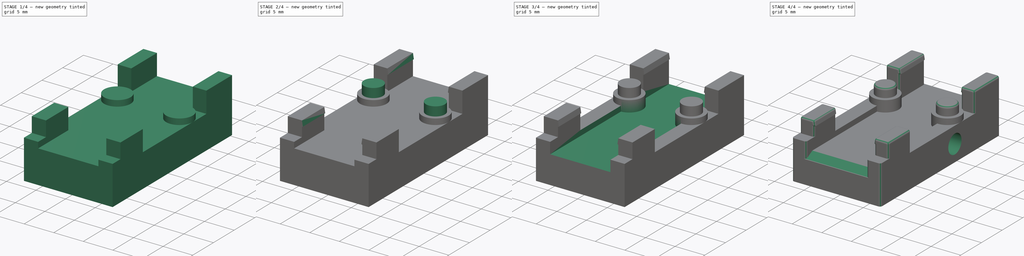
[diagram: build sequence overview — one tinted view per stage of 4, left to right]
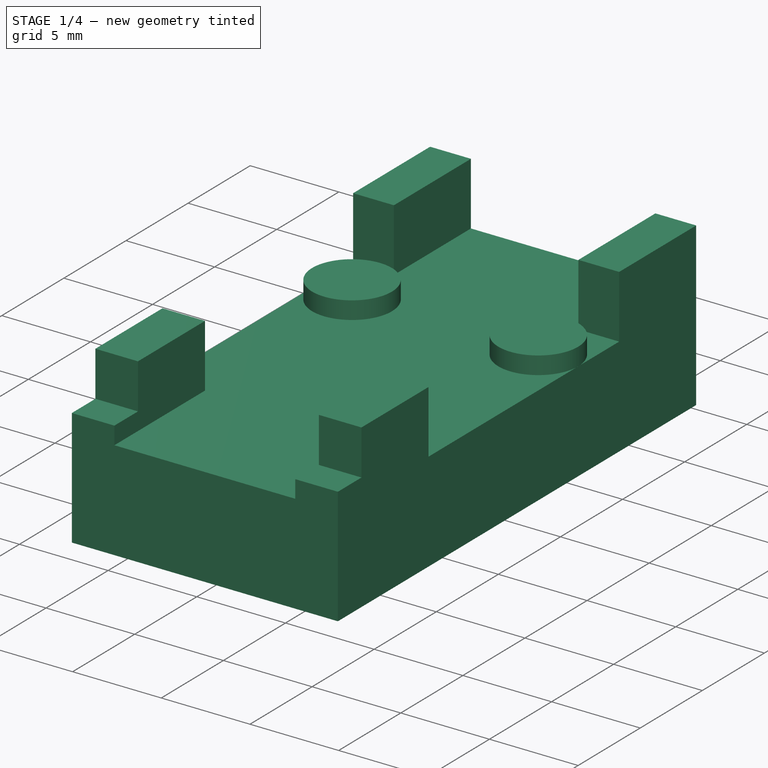
[diagram: stage 1 of 4 — iso view after this stage's code; geometry added in this stage tinted green]
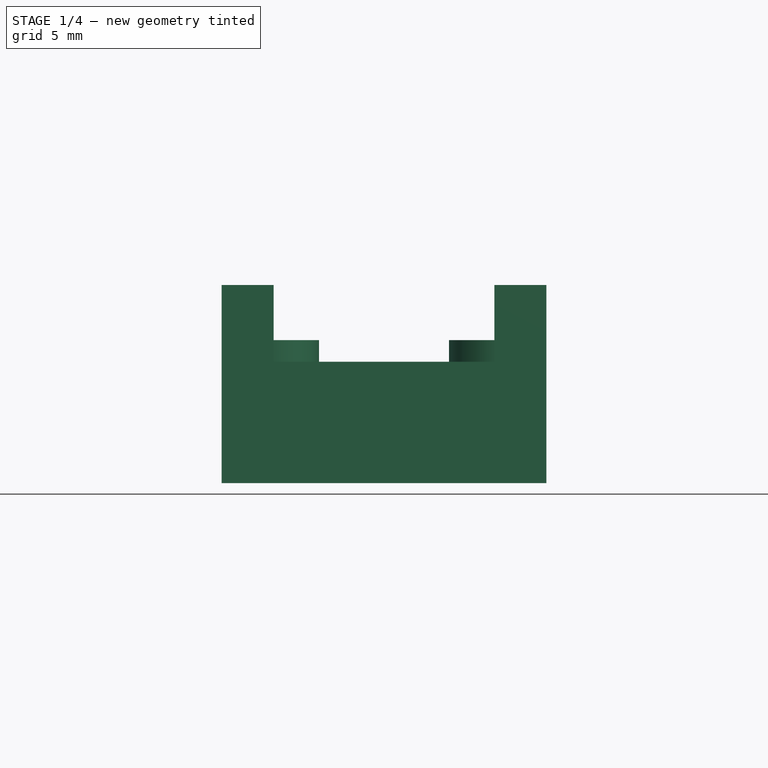
[diagram: stage 1 of 4 — front view after this stage's code; geometry added in this stage tinted green]
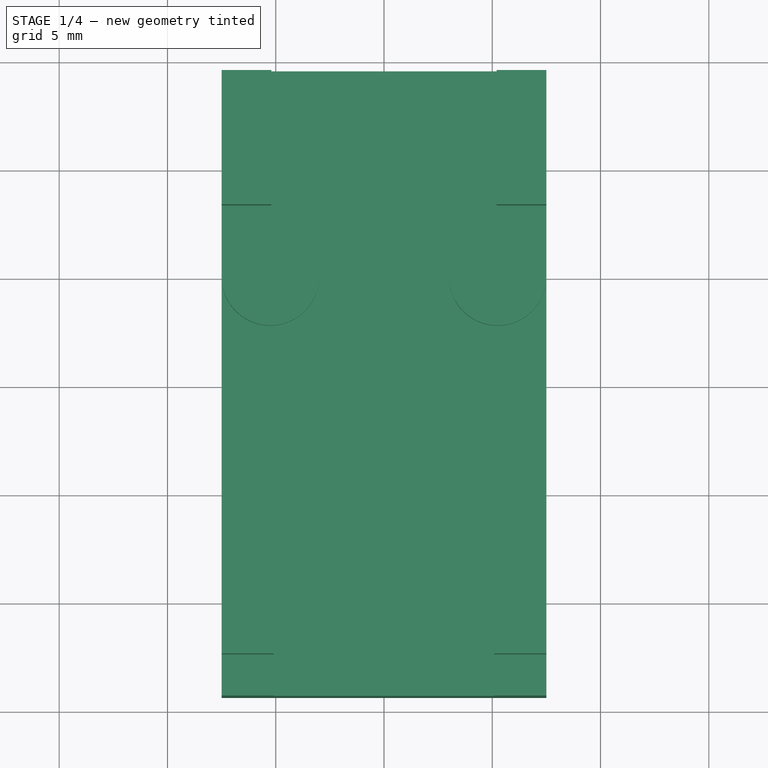
[diagram: stage 1 of 4 — top view after this stage's code; geometry added in this stage tinted green]
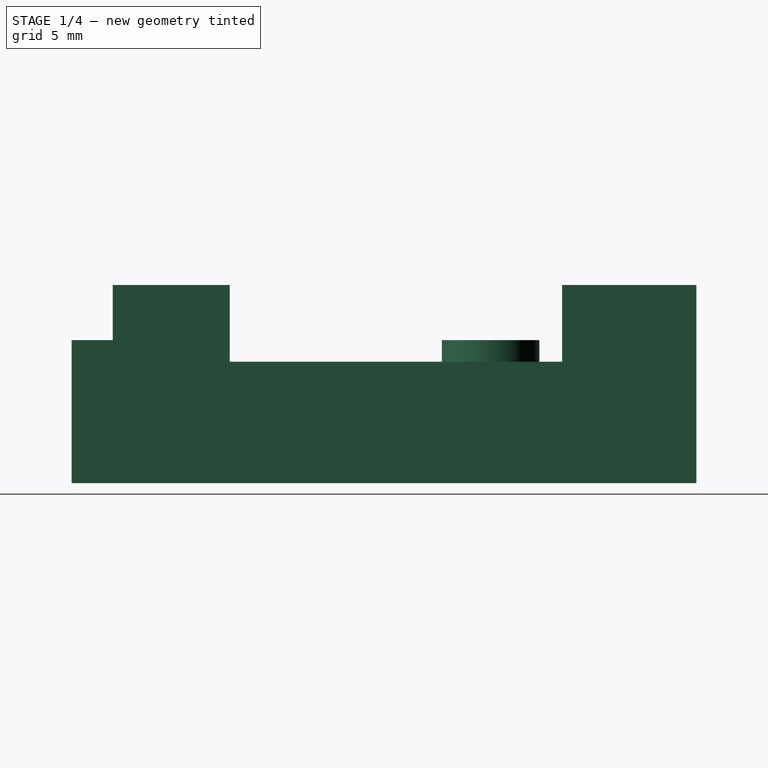
[diagram: stage 1 of 4 — right view after this stage's code; geometry added in this stage tinted green]
FCSTD DOCUMENT  (FreeCAD 1.1R44874 (Git))
Label: EddyDuoMount
License: All rights reserved
LicenseURL: https://en.wikipedia.org/wiki/All_rights_reserved
objects: Sketcher::SketchObject×10, PartDesign::Pad×6, PartDesign::Pocket×3, PartDesign::Plane×2, Spreadsheet::Sheet×1, PartDesign::Chamfer×1, PartDesign::Fillet×1, PartDesign::Body×1, App::Point×1
note: 56 computed .brp shape members not serialized (recipe doc carries the construction recipe); baked Part::Feature solids carry a one-line shape summary decoded from their .brp

FEATURE [Sketcher::SketchObject] Sketch  label="V1_Template_XY"
  ArcFitTolerance = 1e-06
  AttachmentSupport = -> [XY_Plane]
  ExternalTypes = [0]
  FullyConstrained = true
  MakeInternals = false
  MapMode = 5
  _ExternalGeoVersion = 0
  expr: Constraints[82] = <<Spreadsheet>>.MountingHoleOffset
  sketch-geometry (29):
    g0: LineSegment StartX=-7.5 StartY=9.5 StartZ=0 EndX=-7.5 EndY=-17.45 EndZ=0
    g1: LineSegment StartX=7.5 StartY=-17.45 StartZ=0 EndX=7.5 EndY=9.5 EndZ=0
    g2: LineSegment StartX=7.5 StartY=9.5 StartZ=0 EndX=-7.5 EndY=9.5 EndZ=0
    g3: Circle CenterX=5.25 CenterY=0 CenterZ=0 NormalX=0 NormalY=0 NormalZ=1 AngleXU=0 Radius=1.6
    g4: Circle CenterX=-5.25 CenterY=0 CenterZ=0 NormalX=0 NormalY=0 NormalZ=1 AngleXU=0 Radius=1.6
    g5: LineSegment [constr] StartX=1.3e-15 StartY=9.5 StartZ=0 EndX=1e-15 EndY=-17.45 EndZ=0
    g6: LineSegment [constr] StartX=5.25 StartY=0 StartZ=0 EndX=0 EndY=0 EndZ=0
    g7: LineSegment [constr] StartX=-5.25 StartY=0 StartZ=0 EndX=0 EndY=0 EndZ=0
    g8: LineSegment StartX=7.5 StartY=-1.4 StartZ=0 EndX=-7.5 EndY=-1.4 EndZ=0
    g9: LineSegment StartX=7.5 StartY=-17.45 StartZ=0 EndX=10.5 EndY=-17.45 EndZ=0
    g10: LineSegment StartX=10.5 StartY=-17.45 StartZ=0 EndX=10.5 EndY=-15.405 EndZ=0
    g11: LineSegment StartX=10.5 StartY=-15.405 StartZ=0 EndX=7.5 EndY=-15.35 EndZ=0
    g12: LineSegment StartX=-7.5 StartY=-12.05 StartZ=0 EndX=-5.1 EndY=-12.05 EndZ=0
    g13: LineSegment StartX=-5.1 StartY=-12.05 StartZ=0 EndX=-5.1 EndY=-17.45 EndZ=0
    g14: LineSegment StartX=7.5 StartY=-12.05 StartZ=0 EndX=5.1 EndY=-12.05 EndZ=0
    g15: LineSegment StartX=5.1 StartY=-12.05 StartZ=0 EndX=5.1 EndY=-17.45 EndZ=0
    g16: LineSegment StartX=-7.5 StartY=3.3 StartZ=0 EndX=-5.2 EndY=3.3 EndZ=0
    g17: LineSegment StartX=-5.2 StartY=3.3 StartZ=0 EndX=-5.2 EndY=9.5 EndZ=0
    g18: LineSegment StartX=7.5 StartY=3.3 StartZ=0 EndX=5.2 EndY=3.3 EndZ=0
    g19: LineSegment StartX=5.2 StartY=3.3 StartZ=0 EndX=5.2 EndY=9.5 EndZ=0
    g20: LineSegment StartX=-7.5 StartY=-17.45 StartZ=0 EndX=-5.1 EndY=-17.45 EndZ=0
    g21: LineSegment [constr] StartX=-5.1 StartY=-17.45 StartZ=0 EndX=5.1 EndY=-17.45 EndZ=0
    g22: LineSegment StartX=5.1 StartY=-17.45 StartZ=0 EndX=7.5 EndY=-17.45 EndZ=0
    g23: LineSegment StartX=-7.5 StartY=-17.45 StartZ=0 EndX=-7.5 EndY=-19.35 EndZ=0
    g24: LineSegment StartX=7.5 StartY=-17.45 StartZ=0 EndX=7.5 EndY=-19.35 EndZ=0
    g25: LineSegment StartX=7.5 StartY=-19.35 StartZ=0 EndX=-7.5 EndY=-19.35 EndZ=0
    g26: Circle CenterX=-5.25 CenterY=0 CenterZ=0 NormalX=0 NormalY=0 NormalZ=1 AngleXU=0 Radius=2.25
    g27: Circle CenterX=5.25 CenterY=0 CenterZ=0 NormalX=0 NormalY=0 NormalZ=1 AngleXU=0 Radius=2.25
    g28: LineSegment [constr] StartX=-7.5 StartY=-14.75 StartZ=0 EndX=7.5 EndY=-14.75 EndZ=0
  constraints (83):
    c: Coincident(g0,g20)
    c: Coincident(g22,g1)
    c: Coincident(g1,g2)
    c: Coincident(g2,g0)
    c: Vertical(g0)
    c: Vertical(g1)
    c: Horizontal(g2)
    c: DistanceX(g2,g2) = 15
    c: Symmetric(g2,g2,g5)
    c: Symmetric(g20,g22,g5)
    c: Equal(g3,g4)
    c: Coincident(g6,g3)
    c: PointOnObject(g6,g5)
    c: Horizontal(g6)
    c: Coincident(g7,g4)
    c: Horizontal(g7)
    c: Coincident(g7,g6)
    c: PointOnObject(g8,g1)
    c: PointOnObject(g8,g0)
    c: Horizontal(g8)
    c: Coincident(g9,g22)
    c: Horizontal(g9)
    c: Coincident(g10,g9)
    c: Vertical(g10)
    c: DistanceY(g10,g10) = 2.045
    c: Coincident(g11,g10)
    c: PointOnObject(g11,g1)
    c: DistanceY(g22,g11) = 2.1
    c: Diameter(g4) = 3.2
    c: Equal(g7,g6)
    c: DistanceX(g4,g3) = 10.5
    c: DistanceY(g4,g0) = 9.5
    c: PointOnObject(g12,g0)
    c: Horizontal(g12)
    c: Coincident(g13,g12)
    c: Vertical(g13)
    c: DistanceY(g0,g12) = 5.4  'BottomArmLength'
    c: Horizontal(g14)
    c: Coincident(g15,g14)
    c: Vertical(g15)
    c: Equal(g14,g12)
    c: Equal(g15,g13)
    c: PointOnObject(g14,g1)
    c: PointOnObject(g16,g0)
    c: Horizontal(g16)
    c: Coincident(g17,g16)
    c: PointOnObject(g17,g2)
    c: Vertical(g17)
    c: PointOnObject(g18,g1)
    c: Horizontal(g18)
    c: Coincident(g19,g18)
    c: PointOnObject(g19,g2)
    c: Vertical(g19)
    c: Equal(g18,g16)
    c: Equal(g17,g19)
    c: Coincident(g6,g-1)  '__ANCHOR__'
    c: DistanceX(g17,g19) = 10.4
    c: DistanceX(g12,g14) = 10.2
    c: Coincident(g20,g21)
    c: Horizontal(g20)
    c: PointOnObject(g15,g20)
    c: Coincident(g21,g22)
    c: Horizontal(g22)
    c: Coincident(g21,g15)
    c: Coincident(g20,g13)
    c: Coincident(g23,g0)
    c: Vertical(g23)
    c: Coincident(g24,g1)
    c: Vertical(g24)
    c: Coincident(g25,g24)
    c: Coincident(g25,g23)
    c: Horizontal(g25)
    c: DistanceX(g24,g9) = 3
    c: Coincident(g26,g4)
    c: Tangent(g26,g0)
    c: Coincident(g27,g3)
    c: Tangent(g27,g1)
    c: Symmetric(g12,g0,g28)
    c: Symmetric(g14,g1,g28)
    c: DistanceY(g28,g4) = 14.75
    c: DistanceY(g16,g0) = 6.2  'TopArmLength'
    c: DistanceY(g23,g28) = 4.6
    c: DistanceY(g8,g3) = 1.4
FEATURE [Sketcher::SketchObject] Sketch001  label="Base"
  ArcFitTolerance = 1e-06
  AttachmentSupport = -> [XY_Plane]
  ExternalGeometry = -> [Sketch]
  ExternalTypes = [0]
  FullyConstrained = true
  MakeInternals = false
  MapMode = 5
  _ExternalGeoVersion = 0
  sketch-geometry (4):
    g0: LineSegment StartX=-7.5 StartY=9.5 StartZ=0 EndX=-7.5 EndY=-19.35 EndZ=0
    g1: LineSegment StartX=-7.5 StartY=-19.35 StartZ=0 EndX=7.5 EndY=-19.35 EndZ=0
    g2: LineSegment StartX=7.5 StartY=-19.35 StartZ=0 EndX=7.5 EndY=9.5 EndZ=0
    g3: LineSegment StartX=7.5 StartY=9.5 StartZ=0 EndX=-7.5 EndY=9.5 EndZ=0
  constraints (8):
    c: Coincident(g0,g1)
    c: Coincident(g1,g2)
    c: Coincident(g2,g3)
    c: Coincident(g3,g0)
    c: Coincident(g0,g-3)
    c: Coincident(g1,g-4)
    c: Coincident(g2,g-3)
    c: Coincident(g0,g-4)
FEATURE [PartDesign::Pad] Pad  label="Base_"
  Direction = (0,0,1)
  Length = 5.6
  Length2 = 10
  Profile = -> Sketch001
  ReferenceAxis = -> Sketch001 [N_Axis]
  Refine = true
  SideType = 0
  Suppressed = false
  Type = 0
  Type2 = 0
  expr: Length = <<Spreadsheet>>.M3HoleDia + <<Spreadsheet>>.ScrewTopDisplacement + <<Spreadsheet>>.ScrewBottomDisplacement
FEATURE [Sketcher::SketchObject] Sketch002  label="Standoff"
  ArcFitTolerance = 1e-06
  AttachmentOffset = pos=(0,0,5.6) rot=(0,0,1;0rad)
  AttachmentSupport = -> [XY_Plane]
  ExternalGeometry = -> [Sketch]
  ExternalTypes = [0]
  FullyConstrained = true
  MakeInternals = false
  MapMode = 5
  Placement = pos=(0,0,5.6) rot=(0,0,1;0rad)
  _ExternalGeoVersion = 0
  expr: .AttachmentOffset.Base.z = <<Base_>>.Length
  sketch-geometry (18):
    g0: Circle CenterX=-5.25 CenterY=0 CenterZ=0 NormalX=0 NormalY=0 NormalZ=1 AngleXU=0 Radius=2.25
    g1: Circle CenterX=5.25 CenterY=0 CenterZ=0 NormalX=0 NormalY=0 NormalZ=1 AngleXU=0 Radius=2.25
    g2: LineSegment StartX=-7.5 StartY=9.5 StartZ=0 EndX=-7.5 EndY=3.3 EndZ=0
    g3: LineSegment StartX=-7.5 StartY=3.3 StartZ=0 EndX=-5.2 EndY=3.3 EndZ=0
    g4: LineSegment StartX=-5.2 StartY=3.3 StartZ=0 EndX=-5.2 EndY=9.5 EndZ=0
    g5: LineSegment StartX=-5.2 StartY=9.5 StartZ=0 EndX=-7.5 EndY=9.5 EndZ=0
    g6: LineSegment StartX=5.2 StartY=9.5 StartZ=0 EndX=5.2 EndY=3.3 EndZ=0
    g7: LineSegment StartX=5.2 StartY=3.3 StartZ=0 EndX=7.5 EndY=3.3 EndZ=0
    g8: LineSegment StartX=7.5 StartY=3.3 StartZ=0 EndX=7.5 EndY=9.5 EndZ=0
    g9: LineSegment StartX=7.5 StartY=9.5 StartZ=0 EndX=5.2 EndY=9.5 EndZ=0
    g10: LineSegment StartX=-7.5 StartY=-12.05 StartZ=0 EndX=-7.5 EndY=-19.35 EndZ=0
    g11: LineSegment StartX=-7.5 StartY=-19.35 StartZ=0 EndX=-5.1 EndY=-19.35 EndZ=0
    g12: LineSegment StartX=-5.1 StartY=-19.35 StartZ=0 EndX=-5.1 EndY=-12.05 EndZ=0
    g13: LineSegment StartX=-5.1 StartY=-12.05 StartZ=0 EndX=-7.5 EndY=-12.05 EndZ=0
    g14: LineSegment StartX=5.1 StartY=-12.05 StartZ=0 EndX=5.1 EndY=-19.35 EndZ=0
    g15: LineSegment StartX=5.1 StartY=-19.35 StartZ=0 EndX=7.5 EndY=-19.35 EndZ=0
    g16: LineSegment StartX=7.5 StartY=-19.35 StartZ=0 EndX=7.5 EndY=-12.05 EndZ=0
    g17: LineSegment StartX=7.5 StartY=-12.05 StartZ=0 EndX=5.1 EndY=-12.05 EndZ=0
  constraints (40):
    c: Coincident(g0,g-3)
    c: Tangent(g0,g-5)
    c: Coincident(g1,g-4)
    c: Tangent(g1,g-6)
    c: Coincident(g2,g3)
    c: Coincident(g3,g4)
    c: Coincident(g4,g5)
    c: Coincident(g5,g2)
    c: Vertical(g2)
    c: Horizontal(g3)
    c: Coincident(g2,g-5)
    c: Coincident(g3,g-10)
    c: Coincident(g6,g7)
    c: Coincident(g7,g8)
    c: Coincident(g8,g9)
    c: Coincident(g9,g6)
    c: Vertical(g8)
    c: Horizontal(g7)
    c: Coincident(g6,g-11)
    c: Coincident(g8,g-6)
    c: Coincident(g6,g-11)
    c: Coincident(g4,g-10)
    c: Coincident(g10,g11)
    c: Coincident(g11,g12)
    c: Coincident(g12,g13)
    c: Coincident(g13,g10)
    c: Vertical(g12)
    c: Horizontal(g11)
    c: Coincident(g10,g-9)
    c: Coincident(g14,g15)
    c: Coincident(g15,g16)
    c: Coincident(g16,g17)
    c: Coincident(g17,g14)
    c: Vertical(g14)
    c: Horizontal(g15)
    c: Coincident(g14,g-8)
    c: Coincident(g15,g-7)
    c: Coincident(g16,g-8)
    c: Coincident(g12,g-9)
    c: Coincident(g10,g-7)
FEATURE [PartDesign::Pad] Pad001  label="Standoff_"
  BaseFeature = -> Pad
  Direction = (0,0,1)
  Length = 1
  Length2 = 10
  Profile = -> Sketch002
  ReferenceAxis = -> Sketch002 [N_Axis]
  Refine = true
  SideType = 0
  Suppressed = false
  Type = 0
  Type2 = 0
  expr: Length = <<Spreadsheet>>.PCBStandoff
FEATURE [Sketcher::SketchObject] Sketch003  label="PCBSpikes"
  ArcFitTolerance = 1e-06
  AttachmentOffset = pos=(0,0,6.6) rot=(0,0,1;0rad)
  AttachmentSupport = -> [XY_Plane]
  ExternalGeometry = -> [Sketch]
  ExternalTypes = [0]
  FullyConstrained = true
  MakeInternals = false
  MapMode = 5
  Placement = pos=(0,0,6.6) rot=(0,0,1;0rad)
  _ExternalGeoVersion = 0
  expr: .AttachmentOffset.Base.z = <<Base_>>.Length + <<Standoff_>>.Length
  sketch-geometry (2):
    g0: Circle CenterX=-5.25 CenterY=0 CenterZ=0 NormalX=0 NormalY=0 NormalZ=1 AngleXU=0 Radius=1.6
    g1: Circle CenterX=5.25 CenterY=0 CenterZ=0 NormalX=0 NormalY=0 NormalZ=1 AngleXU=0 Radius=1.6
  constraints (4):
    c: Coincident(g0,g-4)
    c: Equal(g0,g-4)
    c: Coincident(g1,g-3)
    c: Equal(g1,g-3)
FEATURE [Sketcher::SketchObject] Sketch004
  ArcFitTolerance = 1e-06
  AttachmentOffset = pos=(0,0,5.6) rot=(0,0,1;0rad)
  AttachmentSupport = -> [XY_Plane]
  ExternalGeometry = -> [Sketch]
  ExternalTypes = [0]
  FullyConstrained = true
  MakeInternals = false
  MapMode = 5
  Placement = pos=(0,0,5.6) rot=(0,0,1;0rad)
  _ExternalGeoVersion = 0
  expr: .AttachmentOffset.Base.z = <<Base_>>.Length
  sketch-geometry (8):
    g0: ArcOfCircle CenterX=-5.25 CenterY=0 CenterZ=0 NormalX=0 NormalY=0 NormalZ=1 AngleXU=0 Radius=2.25 StartAngle=4.77911 EndAngle=7.83176
    g1: ArcOfCircle CenterX=5.25 CenterY=0 CenterZ=0 NormalX=0 NormalY=0 NormalZ=1 AngleXU=0 Radius=2.25 StartAngle=1.59302 EndAngle=4.64567
    g2: LineSegment StartX=5.2 StartY=9.5 StartZ=0 EndX=5.2 EndY=2.24944 EndZ=0
    g3: LineSegment StartX=-5.2 StartY=9.5 StartZ=0 EndX=-5.2 EndY=2.24944 EndZ=0
    g4: LineSegment StartX=-5.2 StartY=9.5 StartZ=0 EndX=5.2 EndY=9.5 EndZ=0
    g5: LineSegment StartX=-5.1 StartY=-19.35 StartZ=0 EndX=5.1 EndY=-19.35 EndZ=0
    g6: LineSegment StartX=-5.1 StartY=-19.35 StartZ=0 EndX=-5.1 EndY=-2.24499 EndZ=0
    g7: LineSegment StartX=5.1 StartY=-19.35 StartZ=0 EndX=5.1 EndY=-2.24499 EndZ=0
  constraints (22):
    c: Coincident(g1,g-4)
    c: Coincident(g0,g-3)
    c: Coincident(g2,g-6)
    c: PointOnObject(g2,g-4)
    c: PointOnObject(g-6,g2)
    c: Coincident(g1,g2)
    c: Coincident(g3,g-5)
    c: PointOnObject(g3,g-3)
    c: PointOnObject(g-5,g3)
    c: Coincident(g0,g3)
    c: Coincident(g4,g3)
    c: Coincident(g4,g2)
    c: Horizontal(g5)
    c: PointOnObject(g5,g-9)
    c: Coincident(g6,g0)
    c: Coincident(g7,g1)
    c: Coincident(g5,g7)
    c: PointOnObject(g-12,g7)
    c: PointOnObject(g-12,g7)
    c: PointOnObject(g-11,g6)
    c: PointOnObject(g-11,g6)
    c: Coincident(g5,g6)
FEATURE [Sketcher::SketchObject] Sketch009  label="MountingHoles"
  ArcFitTolerance = 1e-06
  AttachmentSupport = -> [YZ_Plane]
  ExternalGeometry = -> [Sketch]
  ExternalTypes = [0]
  FullyConstrained = true
  MakeInternals = false
  MapMode = 5
  Placement = pos=(0,0,0) rot=(0.57735,0.57735,0.57735;2.0944rad)
  _ExternalGeoVersion = 0
  expr: Constraints[2] = <<Spreadsheet>>.M3HoleDia / 2 + <<Spreadsheet>>.ScrewBottomDisplacement
  expr: Constraints[6] = <<Spreadsheet>>.M3HoleDia
  sketch-geometry (4):
    g0: LineSegment [constr] StartX=-1.4 StartY=0 StartZ=0 EndX=-1.4 EndY=2.8 EndZ=0
    g1: LineSegment [constr] StartX=-17.4 StartY=2.8 StartZ=0 EndX=-1.4 EndY=2.8 EndZ=0
    g2: Circle CenterX=-1.4 CenterY=2.8 CenterZ=0 NormalX=0 NormalY=0 NormalZ=1 AngleXU=0 Radius=1.6
    g3: Circle [constr] CenterX=-17.4 CenterY=2.8 CenterZ=0 NormalX=0 NormalY=0 NormalZ=1 AngleXU=0 Radius=1.3
  constraints (10):
    c: Coincident(g0,g-3)
    c: Vertical(g0)
    c: DistanceY(g0,g0) = 2.8
    c: Horizontal(g1)
    c: DistanceX(g1,g0) = 16
    c: Coincident(g2,g0)
    c: Diameter(g2) = 3.2
    c: Coincident(g1,g0)
    c: Coincident(g3,g1)
    c: Diameter(g3) = 2.6
FEATURE [Spreadsheet::Sheet] Spreadsheet
  cells = B2='Variant; C2='MountingHoleOffset; B3==hiddenref(Body.Config.String); C3(MountingHoleOffset)==.C6; B4='Low; C4==0.2 mm; B5='Medium; C5==0.8 mm; B6='High; C6==1.4 mm; B8='MountingHoleAdjust; C8(MountingHoleAdjust)==1.2 mm; B9='M3HoleDia; C9(M3HoleDia)==3.2 mm; B10='ScrewTopDisplacement; C10(ScrewTopDisplacement)==1.2 mm; B11='ScrewBottomDisplacement; C11(ScrewBottomDisplacement)==1.2 mm; B12='PCBThickness; C12(PCBThickness)==1.55 mm; B13='PCBStandoff; C13(PCBStandoff)==1 mm; B14='LockOverhang; C14(LockOverhang)==0.15 mm
  expr: .cells.Bind.C3.C3 = tuple(.cells; <<C>> + str(hiddenref(Body.Config) + 4); <<C>> + str(hiddenref(Body.Config) + 4))
FEATURE [Sketcher::SketchObject] Sketch010  label="Arms"
  ArcFitTolerance = 1e-06
  AttachmentOffset = pos=(0,0,6.6) rot=(0,0,1;0rad)
  AttachmentSupport = -> [XY_Plane]
  ExternalGeometry = -> [Sketch]
  ExternalTypes = [0]
  FullyConstrained = true
  MakeInternals = false
  MapMode = 5
  Placement = pos=(0,0,6.6) rot=(0,0,1;0rad)
  _ExternalGeoVersion = 0
  expr: .AttachmentOffset.Base.z = <<Base_>>.Length + <<Standoff_>>.Length
  sketch-geometry (16):
    g0: LineSegment StartX=-7.5 StartY=9.5 StartZ=0 EndX=-7.5 EndY=3.3 EndZ=0
    g1: LineSegment StartX=-7.5 StartY=3.3 StartZ=0 EndX=-5.2 EndY=3.3 EndZ=0
    g2: LineSegment StartX=-5.2 StartY=3.3 StartZ=0 EndX=-5.2 EndY=9.5 EndZ=0
    g3: LineSegment StartX=-5.2 StartY=9.5 StartZ=0 EndX=-7.5 EndY=9.5 EndZ=0
    g4: LineSegment StartX=5.2 StartY=9.5 StartZ=0 EndX=5.2 EndY=3.3 EndZ=0
    g5: LineSegment StartX=5.2 StartY=3.3 StartZ=0 EndX=7.5 EndY=3.3 EndZ=0
    g6: LineSegment StartX=7.5 StartY=3.3 StartZ=0 EndX=7.5 EndY=9.5 EndZ=0
    g7: LineSegment StartX=7.5 StartY=9.5 StartZ=0 EndX=5.2 EndY=9.5 EndZ=0
    g8: LineSegment StartX=5.1 StartY=-12.05 StartZ=0 EndX=5.1 EndY=-17.45 EndZ=0
    g9: LineSegment StartX=5.1 StartY=-17.45 StartZ=0 EndX=7.5 EndY=-17.45 EndZ=0
    g10: LineSegment StartX=7.5 StartY=-17.45 StartZ=0 EndX=7.5 EndY=-12.05 EndZ=0
    g11: LineSegment StartX=7.5 StartY=-12.05 StartZ=0 EndX=5.1 EndY=-12.05 EndZ=0
    g12: LineSegment StartX=-7.5 StartY=-12.05 StartZ=0 EndX=-7.5 EndY=-17.45 EndZ=0
    g13: LineSegment StartX=-7.5 StartY=-17.45 StartZ=0 EndX=-5.1 EndY=-17.45 EndZ=0
    g14: LineSegment StartX=-5.1 StartY=-17.45 StartZ=0 EndX=-5.1 EndY=-12.05 EndZ=0
    g15: LineSegment StartX=-5.1 StartY=-12.05 StartZ=0 EndX=-7.5 EndY=-12.05 EndZ=0
  constraints (40):
    c: Coincident(g0,g1)
    c: Coincident(g1,g2)
    c: Coincident(g2,g3)
    c: Coincident(g3,g0)
    c: Vertical(g0)
    c: Vertical(g2)
    c: Horizontal(g1)
    c: Horizontal(g3)
    c: Coincident(g0,g-7)
    c: Coincident(g1,g-4)
    c: Coincident(g4,g5)
    c: Coincident(g5,g6)
    c: Coincident(g6,g7)
    c: Coincident(g7,g4)
    c: Vertical(g4)
    c: Vertical(g6)
    c: Horizontal(g5)
    c: Horizontal(g7)
    c: Coincident(g4,g-5)
    c: Coincident(g5,g-6)
    c: Coincident(g8,g9)
    c: Coincident(g9,g10)
    c: Coincident(g10,g11)
    c: Coincident(g11,g8)
    c: Vertical(g8)
    c: Vertical(g10)
    c: Horizontal(g9)
    c: Horizontal(g11)
    c: Coincident(g8,g-10)
    c: Coincident(g9,g-11)
    c: Coincident(g12,g13)
    c: Coincident(g13,g14)
    c: Coincident(g14,g15)
    c: Coincident(g15,g12)
    c: Vertical(g12)
    c: Vertical(g14)
    c: Horizontal(g13)
    c: Horizontal(g15)
    c: Coincident(g12,g-8)
    c: Coincident(g13,g-9)
FEATURE [PartDesign::Pad] Pad004  label="Arms_"
  BaseFeature = -> Pad001
  Direction = (0,0,1)
  Length = 2.55
  Length2 = 10
  Profile = -> Sketch010
  ReferenceAxis = -> Sketch010 [N_Axis]
  Refine = true
  SideType = 0
  Suppressed = false
  Type = 0
  Type2 = 0
  expr: Length = <<Spreadsheet>>.PCBThickness + 1 mm
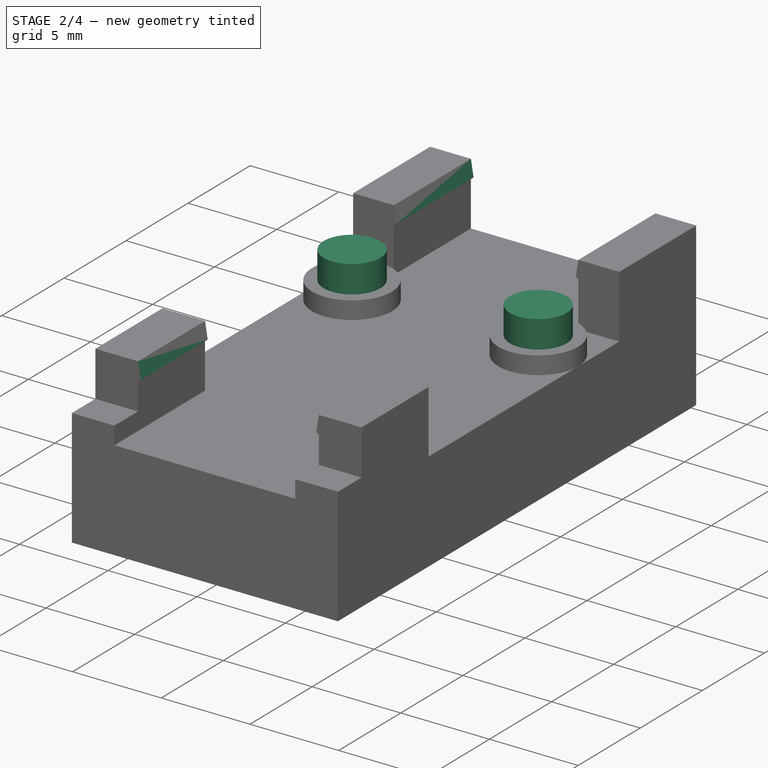
[diagram: stage 2 of 4 — iso view after this stage's code; geometry added in this stage tinted green]
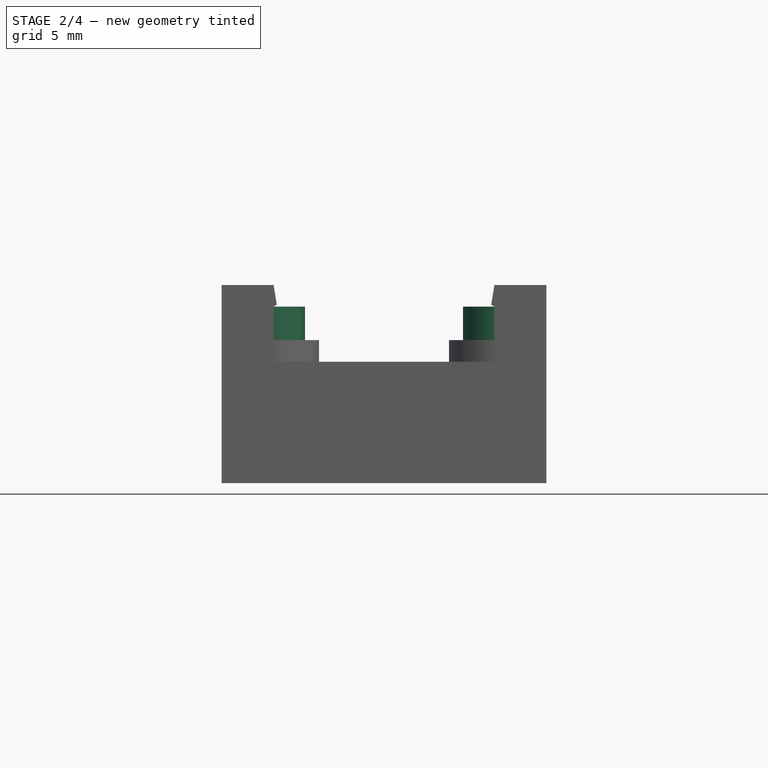
[diagram: stage 2 of 4 — front view after this stage's code; geometry added in this stage tinted green]
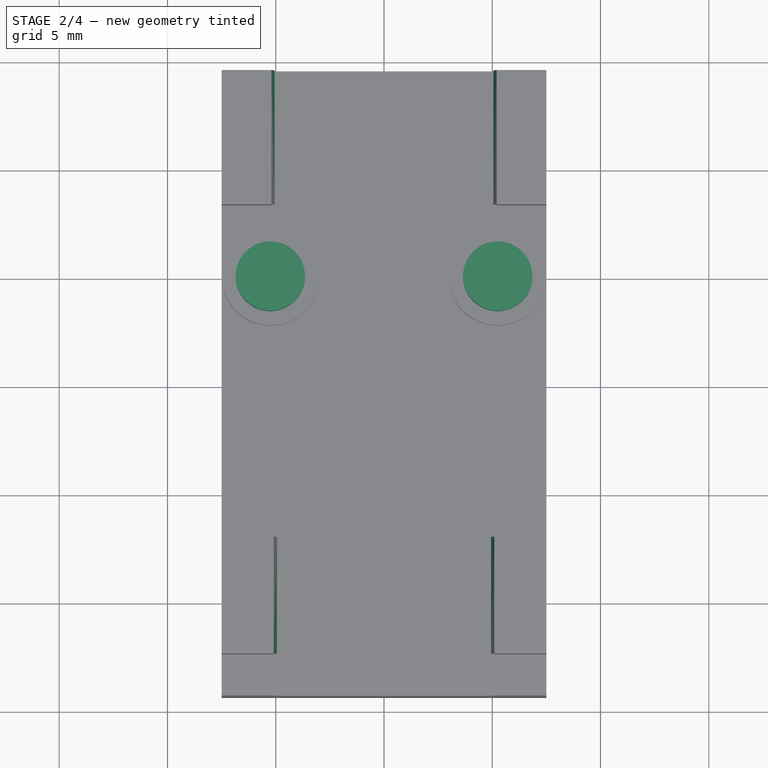
[diagram: stage 2 of 4 — top view after this stage's code; geometry added in this stage tinted green]
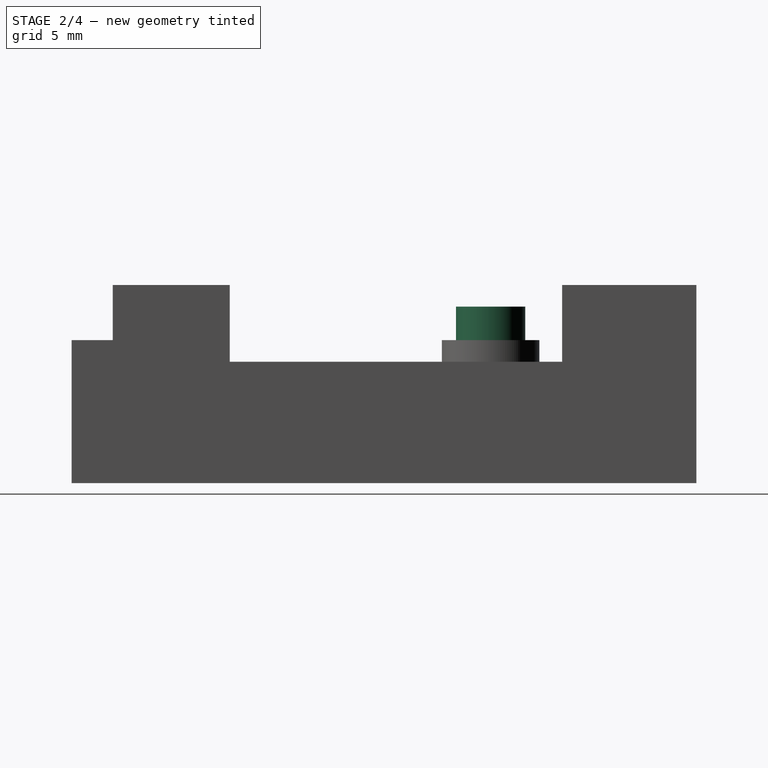
[diagram: stage 2 of 4 — right view after this stage's code; geometry added in this stage tinted green]
FEATURE [PartDesign::Pad] Pad002  label="PCBSpikes_"
  BaseFeature = -> Pad004
  Direction = (0,0,1)
  Length = 1.55
  Length2 = 10
  Profile = -> Sketch003
  ReferenceAxis = -> Sketch003 [N_Axis]
  Refine = true
  SideType = 0
  Suppressed = false
  Type = 0
  Type2 = 0
  expr: Length = <<Spreadsheet>>.PCBThickness
FEATURE [PartDesign::Plane] DatumPlane
  AttachmentSupport = -> [Sketch]
  Length = 60
  MapMode = 7
  Placement = pos=(-5.1,-12.05,0) rot=(0,0.707107,0.707107;3.14159rad)
  ResizeMode = 0
  Width = 60
FEATURE [Sketcher::SketchObject] Sketch011  label="BottomLocks"
  ArcFitTolerance = 1e-06
  AttachmentSupport = -> [DatumPlane]
  ExternalGeometry = -> [Sketch]
  ExternalTypes = [0]
  FullyConstrained = true
  MakeInternals = false
  MapMode = 5
  Placement = pos=(-5.1,-12.05,0) rot=(0,0.707107,0.707107;3.14159rad)
  _ExternalGeoVersion = 0
  expr: Constraints[12] = <<Base>>.Placement.Base.z + <<Base_>>.Length + <<Standoff_>>.Length + <<Arms_>>.Length
  expr: Constraints[23] = <<Spreadsheet>>.LockOverhang
  expr: Constraints[5] = <<Base>>.Placement.Base.z + <<Base_>>.Length + <<Standoff_>>.Length + <<Spreadsheet>>.PCBThickness
  sketch-geometry (9):
    g0: LineSegment [constr] StartX=0 StartY=0 StartZ=0 EndX=0 EndY=8.15 EndZ=0
    g1: LineSegment [constr] StartX=-10.2 StartY=0 StartZ=0 EndX=-10.2 EndY=8.15 EndZ=0
    g2: LineSegment StartX=0 StartY=8.15 StartZ=0 EndX=-0.15 EndY=8.2366 EndZ=0
    g3: LineSegment StartX=-0.15 StartY=8.2366 StartZ=0 EndX=0 EndY=9.15 EndZ=0
    g4: LineSegment [constr] StartX=0 StartY=8.15 StartZ=0 EndX=-0.164222 EndY=8.15 EndZ=0
    g5: LineSegment StartX=0 StartY=8.15 StartZ=0 EndX=0 EndY=9.15 EndZ=0
    g6: LineSegment StartX=-10.2 StartY=8.15 StartZ=0 EndX=-10.2 EndY=9.15 EndZ=0
    g7: LineSegment StartX=-10.2 StartY=9.15 StartZ=0 EndX=-10.05 EndY=8.2366 EndZ=0
    g8: LineSegment StartX=-10.05 StartY=8.2366 StartZ=0 EndX=-10.2 EndY=8.15 EndZ=0
  constraints (25):
    c: Coincident(g0,g-4)
    c: Vertical(g0)
    c: Coincident(g1,g-3)
    c: Vertical(g1)
    c: Equal(g0,g1)
    c: DistanceY(g0,g0) = 8.15
    c: Coincident(g2,g0)
    c: Coincident(g3,g2)
    c: Coincident(g4,g0)
    c: Horizontal(g4)
    c: PointOnObject(g4,g3)
    c: Coincident(g5,g0)
    c: DistanceY(g0,g3) = 9.15
    c: Vertical(g5)
    c: Coincident(g5,g3)
    c: Coincident(g6,g1)
    c: Vertical(g6)
    c: Equal(g6,g5)
    c: Coincident(g7,g6)
    c: Coincident(g8,g7)
    c: Coincident(g8,g1)
    c: Equal(g8,g2)
    c: Equal(g7,g3)
    c: DistanceX(g2,g3) = 0.15
    c: Angle(g2,g4) = 0.523599
FEATURE [PartDesign::Plane] DatumPlane001
  AttachmentSupport = -> [Sketch]
  Length = 60
  MapMode = 7
  Placement = pos=(5.2,9.5,0) rot=(1,0,0;1.5708rad)
  ResizeMode = 0
  Width = 60
FEATURE [Sketcher::SketchObject] Sketch012  label="TopLocks"
  ArcFitTolerance = 1e-06
  AttachmentSupport = -> [DatumPlane001]
  ExternalGeometry = -> [Sketch]
  ExternalTypes = [0]
  FullyConstrained = true
  MakeInternals = false
  MapMode = 5
  Placement = pos=(5.2,9.5,0) rot=(1,0,0;1.5708rad)
  _ExternalGeoVersion = 0
  expr: Constraints[16] = <<Spreadsheet>>.LockOverhang
  expr: Constraints[2] = <<Base>>.Placement.Base.z + <<Base_>>.Length + <<Standoff_>>.Length + <<Spreadsheet>>.PCBThickness
  expr: Constraints[8] = <<Base>>.Placement.Base.z + <<Base_>>.Length + <<Standoff_>>.Length + <<Arms_>>.Length
  sketch-geometry (9):
    g0: LineSegment [constr] StartX=0 StartY=-1.4e-15 StartZ=0 EndX=0 EndY=8.15 EndZ=0
    g1: LineSegment [constr] StartX=-10.4 StartY=-1.4e-15 StartZ=0 EndX=-10.4 EndY=8.15 EndZ=0
    g2: LineSegment StartX=0 StartY=8.15 StartZ=0 EndX=0 EndY=9.15 EndZ=0
    g3: LineSegment StartX=0 StartY=8.15 StartZ=0 EndX=-0.15 EndY=8.2366 EndZ=0
    g4: LineSegment StartX=-0.15 StartY=8.2366 StartZ=0 EndX=0 EndY=9.15 EndZ=0
    g5: LineSegment [constr] StartX=0 StartY=8.15 StartZ=0 EndX=-0.164222 EndY=8.15 EndZ=0
    g6: LineSegment StartX=-10.4 StartY=8.15 StartZ=0 EndX=-10.4 EndY=9.15 EndZ=0
    g7: LineSegment StartX=-10.4 StartY=9.15 StartZ=0 EndX=-10.25 EndY=8.2366 EndZ=0
    g8: LineSegment StartX=-10.25 StartY=8.2366 StartZ=0 EndX=-10.4 EndY=8.15 EndZ=0
  constraints (25):
    c: Vertical(g0)
    c: Coincident(g-4,g0)
    c: DistanceY(g0,g0) = 8.15
    c: Coincident(g1,g-3)
    c: Vertical(g1)
    c: Equal(g0,g1)
    c: Coincident(g2,g0)
    c: Vertical(g2)
    c: DistanceY(g0,g2) = 9.15
    c: Coincident(g3,g0)
    c: Coincident(g4,g3)
    c: Coincident(g4,g2)
    c: Coincident(g5,g0)
    c: Horizontal(g5)
    c: PointOnObject(g5,g4)
    c: Angle(g3,g5) = 0.523599
    c: DistanceX(g3,g2) = 0.15
    c: Coincident(g6,g1)
    c: Vertical(g6)
    c: Coincident(g7,g6)
    c: Coincident(g8,g7)
    c: Coincident(g8,g1)
    c: Equal(g2,g6)
    c: Equal(g7,g4)
    c: Equal(g3,g8)
FEATURE [PartDesign::Pad] Pad006  label="TopLocks_"
  BaseFeature = -> Pad002
  Direction = (0,-1,2e-16)
  Length = 6.2
  Length2 = 10
  Profile = -> Sketch012
  ReferenceAxis = -> Sketch012 [N_Axis]
  Refine = true
  SideType = 0
  Suppressed = false
  Type = 0
  Type2 = 0
  expr: Length = <<V1_Template_XY>>.Constraints.TopArmLength
FEATURE [PartDesign::Pad] Pad005  label="BottomLocks_"
  BaseFeature = -> Pad006
  Direction = (0,1,-2e-16)
  Length = 5.4
  Length2 = 10
  Profile = -> Sketch011
  ReferenceAxis = -> Sketch011 [N_Axis]
  Refine = true
  Reversed = true
  SideType = 0
  Suppressed = false
  Type = 0
  Type2 = 0
  expr: Length = <<V1_Template_XY>>.Constraints.BottomArmLength
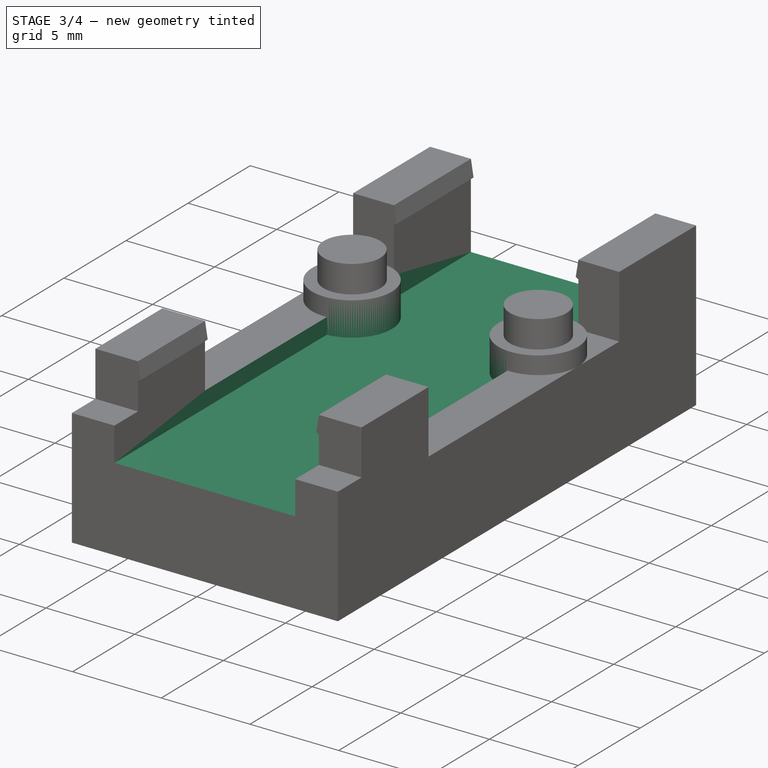
[diagram: stage 3 of 4 — iso view after this stage's code; geometry added in this stage tinted green]
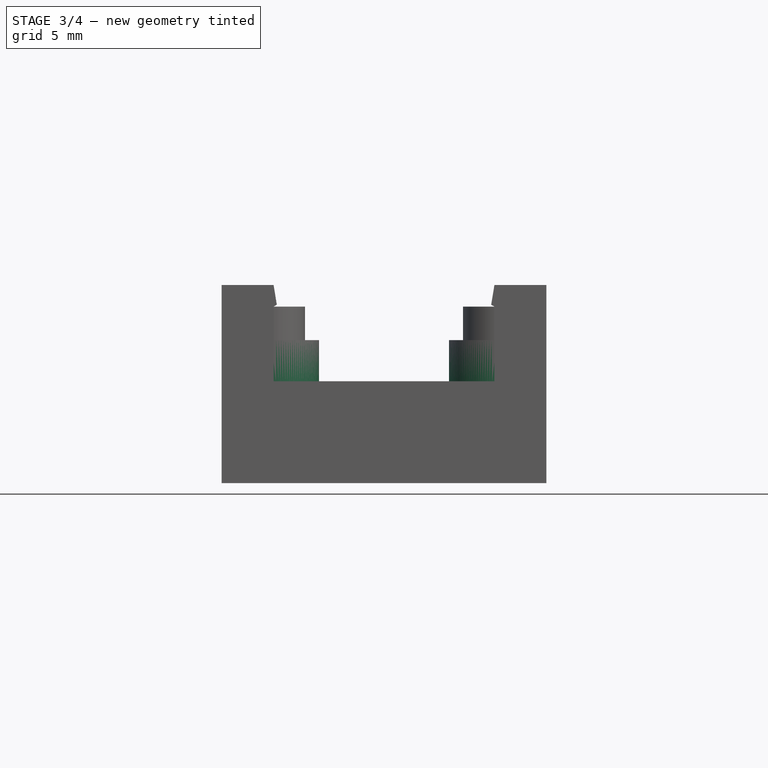
[diagram: stage 3 of 4 — front view after this stage's code; geometry added in this stage tinted green]
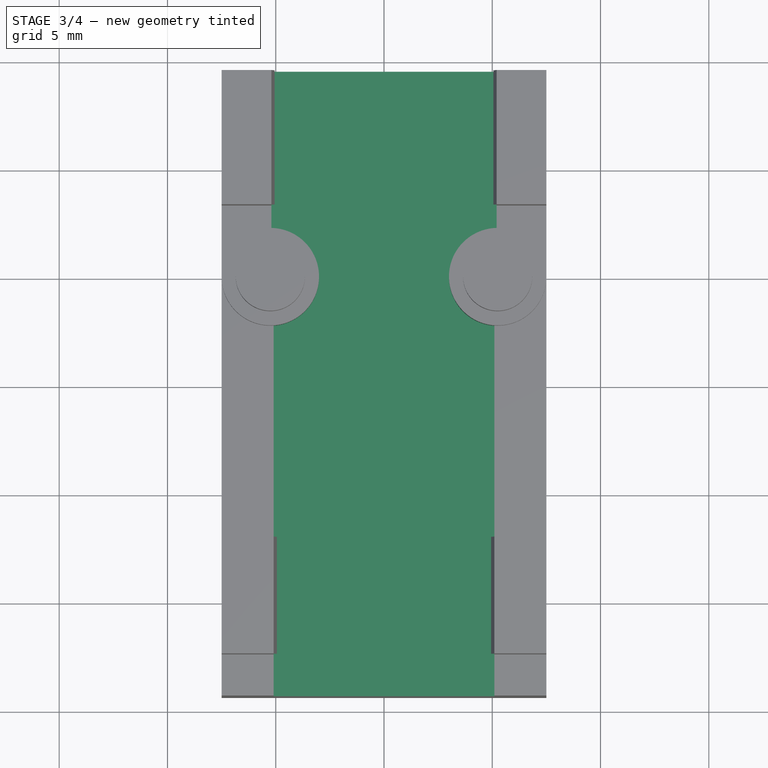
[diagram: stage 3 of 4 — top view after this stage's code; geometry added in this stage tinted green]
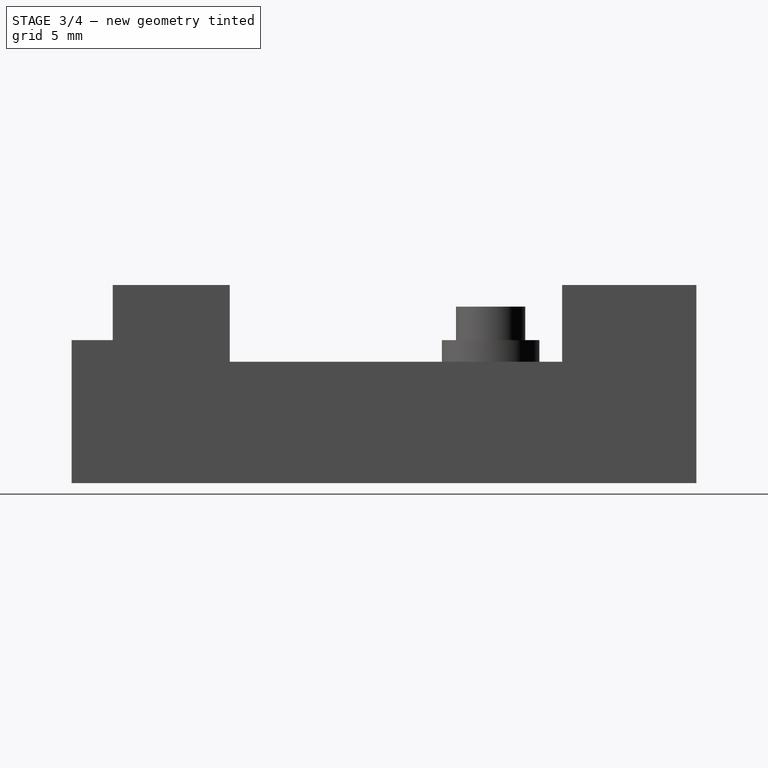
[diagram: stage 3 of 4 — right view after this stage's code; geometry added in this stage tinted green]
FEATURE [PartDesign::Pocket] Pocket
  BaseFeature = -> Pad005
  Direction = (0,0,-1)
  Length = 0.9
  Length2 = 5
  Profile = -> Sketch004
  ReferenceAxis = -> Sketch004 [N_Axis]
  Refine = true
  SideType = 0
  Suppressed = false
  Type = 0
  Type2 = 0
FEATURE [Sketcher::SketchObject] Sketch013
  ArcFitTolerance = 1e-06
  AttachmentOffset = pos=(0,0,5.6) rot=(0,0,1;0rad)
  AttachmentSupport = -> [XY_Plane]
  ExternalGeometry = -> [Sketch]
  ExternalTypes = [0]
  FullyConstrained = true
  MakeInternals = false
  MapMode = 5
  Placement = pos=(0,0,5.6) rot=(0,0,1;0rad)
  _ExternalGeoVersion = 0
  expr: .AttachmentOffset.Base.z = <<Base_>>.Length
  sketch-geometry (4):
    g0: LineSegment StartX=-5.2 StartY=9.5 StartZ=0 EndX=-5.2 EndY=3.3 EndZ=0
    g1: LineSegment StartX=-5.2 StartY=3.3 StartZ=0 EndX=5.2 EndY=3.3 EndZ=0
    g2: LineSegment StartX=5.2 StartY=3.3 StartZ=0 EndX=5.2 EndY=9.5 EndZ=0
    g3: LineSegment StartX=5.2 StartY=9.5 StartZ=0 EndX=-5.2 EndY=9.5 EndZ=0
  constraints (8):
    c: Coincident(g0,g1)
    c: Coincident(g1,g2)
    c: Coincident(g2,g3)
    c: Coincident(g3,g0)
    c: Coincident(g0,g-3)
    c: Coincident(g1,g-4)
    c: Coincident(g0,g-3)
    c: Coincident(g2,g-4)
FEATURE [PartDesign::Pocket] Pocket003
  BaseFeature = -> Pocket
  Direction = (0,0,-1)
  Length = 1.2
  Length2 = 5
  Profile = -> Sketch013
  ReferenceAxis = -> Sketch013 [N_Axis]
  Refine = true
  SideType = 0
  Suppressed = false
  Type = 0
  Type2 = 0
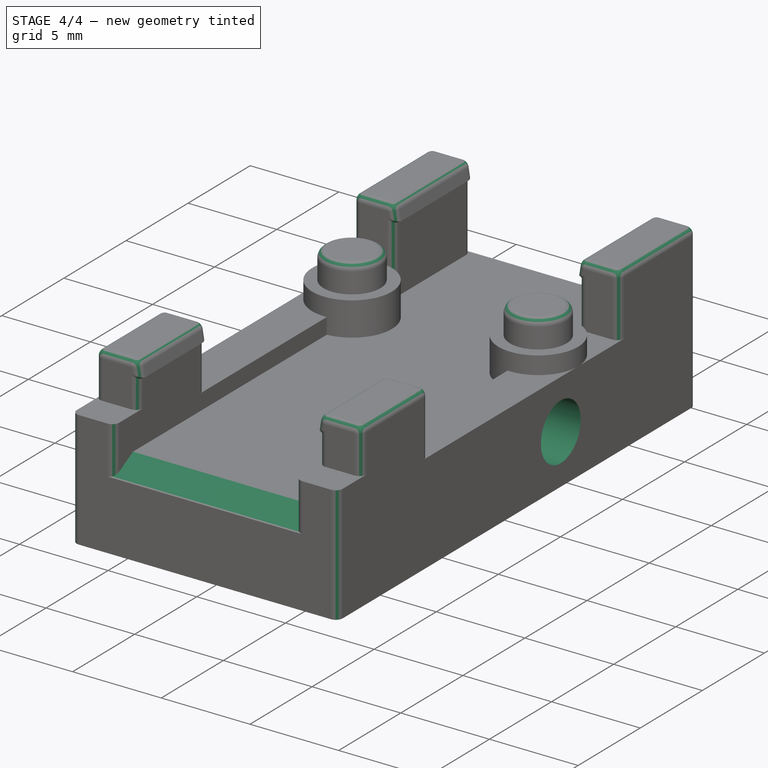
[diagram: stage 4 of 4 — iso view after this stage's code; geometry added in this stage tinted green]
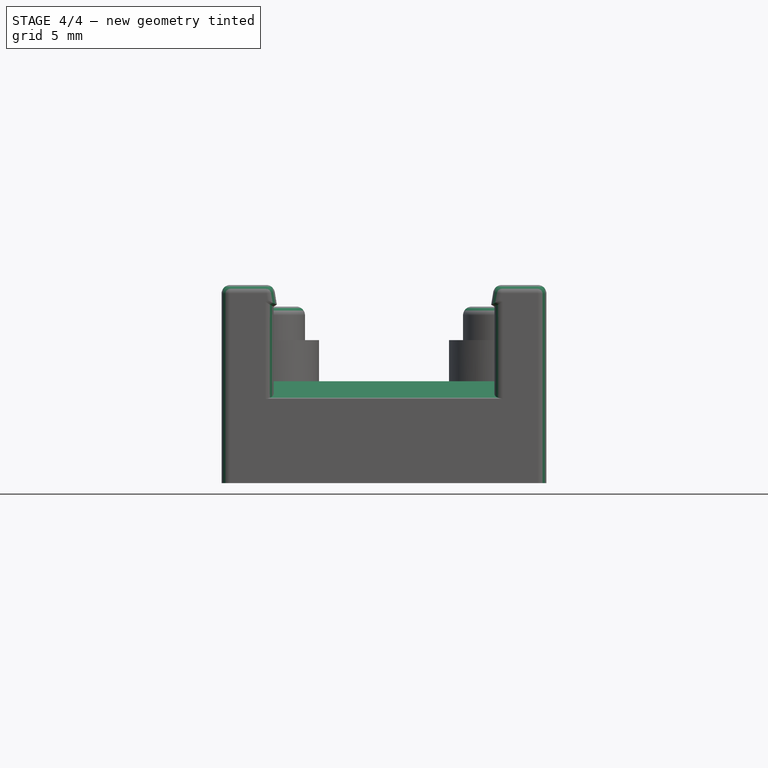
[diagram: stage 4 of 4 — front view after this stage's code; geometry added in this stage tinted green]
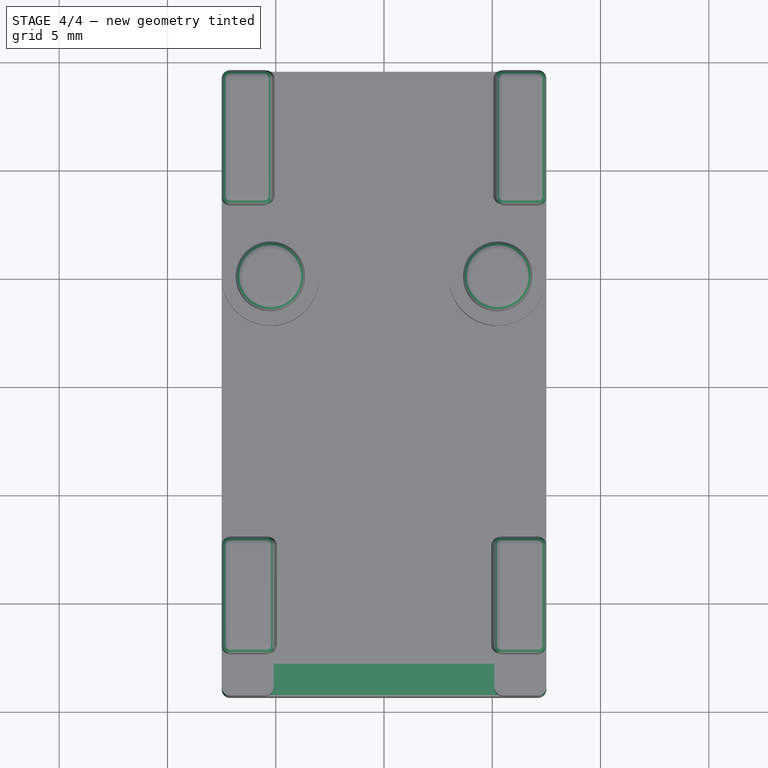
[diagram: stage 4 of 4 — top view after this stage's code; geometry added in this stage tinted green]
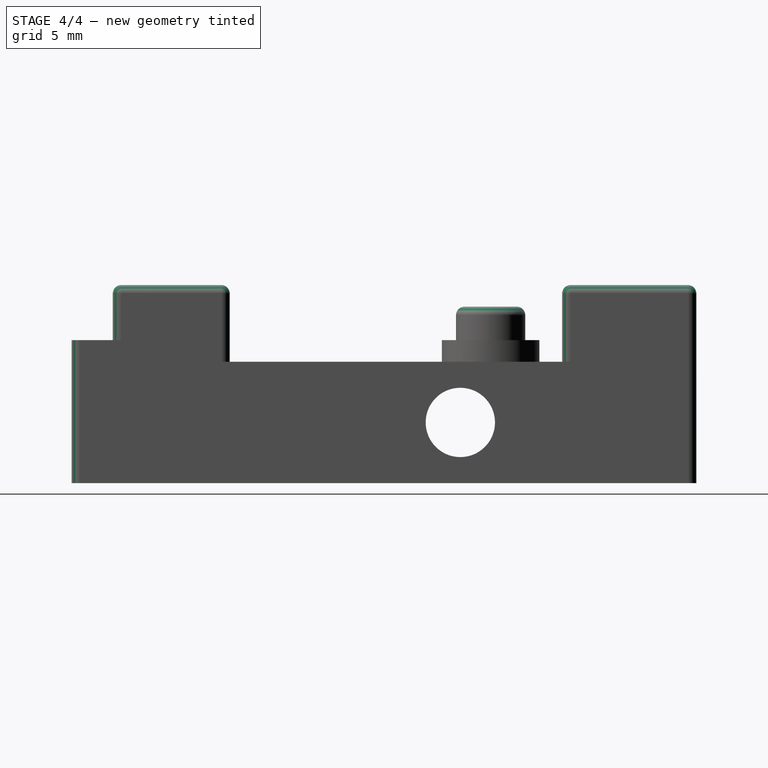
[diagram: stage 4 of 4 — right view after this stage's code; geometry added in this stage tinted green]
FEATURE [PartDesign::Chamfer] Chamfer
  Angle = 45
  Base = -> Pocket003 [Edge17]
  BaseFeature = -> Pocket003
  ChamferType = 1
  FlipDirection = false
  Refine = true
  Size = 0.8
  Size2 = 1.5
  SupportTransform = false
  Suppressed = false
  UseAllEdges = false
FEATURE [PartDesign::Fillet] Fillet
  Base = -> Chamfer [Edge68,Edge18,Edge67,Edge29,Edge80,Edge82,Edge86,Edge87,Edge88,Edge105,Edge104,Edge103,Edge93,Edge94,Edge95,Edge99,Edge98,Edge97,Edge15,Edge65,Edge64,Edge77,Edge76,Edge26,Edge120,Edge122,Edge100,Edge107,Edge83,Edge90,Edge92,Edge101,Edge44,Edge78,Edge49,Edge81,Edge91,Edge37,Edge89,Edge32,+14 more]
  BaseFeature = -> Chamfer
  Radius = 0.4
  Refine = true
  SupportTransform = false
  Suppressed = false
  UseAllEdges = false
FEATURE [PartDesign::Pocket] Pocket002  label="MountingHoles_"
  BaseFeature = -> Fillet
  Direction = (-1,0,0)
  Length = 5
  Length2 = 5
  Profile = -> Sketch009
  ReferenceAxis = -> Sketch009 [N_Axis]
  Refine = true
  SideType = 2
  Suppressed = false
  Type = 1
  Type2 = 0
FEATURE [PartDesign::Body] Body  label="V1"
  AllowCompound = false
  Config = 2
  Group = -> [Sketch,Sketch001,Pad,Sketch002,Pad001,Sketch010,Pad004,Sketch003,Pad002,DatumPlane,Sketch012,Pad006,DatumPlane001,Sketch011,Pad005,Sketch004,Pocket,Sketch013,Pocket003,Chamfer,Sketch009,Fillet,Pocket002]
  Origin = -> Origin
  Tip = -> Pocket002
  expr: .Config.Enum = Spreadsheet.cells[<<B4:|>>]
FEATURE [App::Point] Origin004  label="Origin"
  Role = Origin
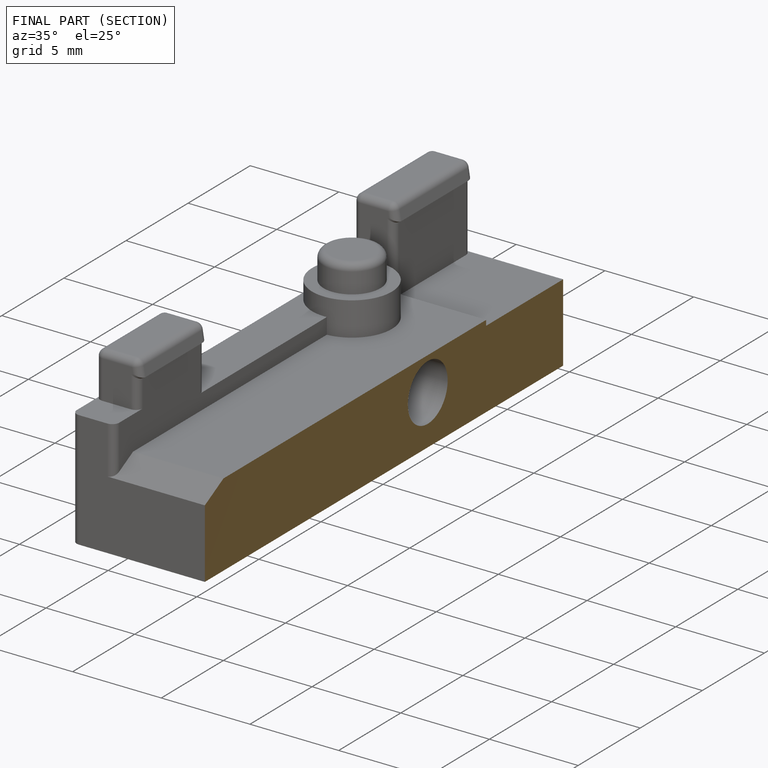
[diagram: finished part — half-section view (interior)]
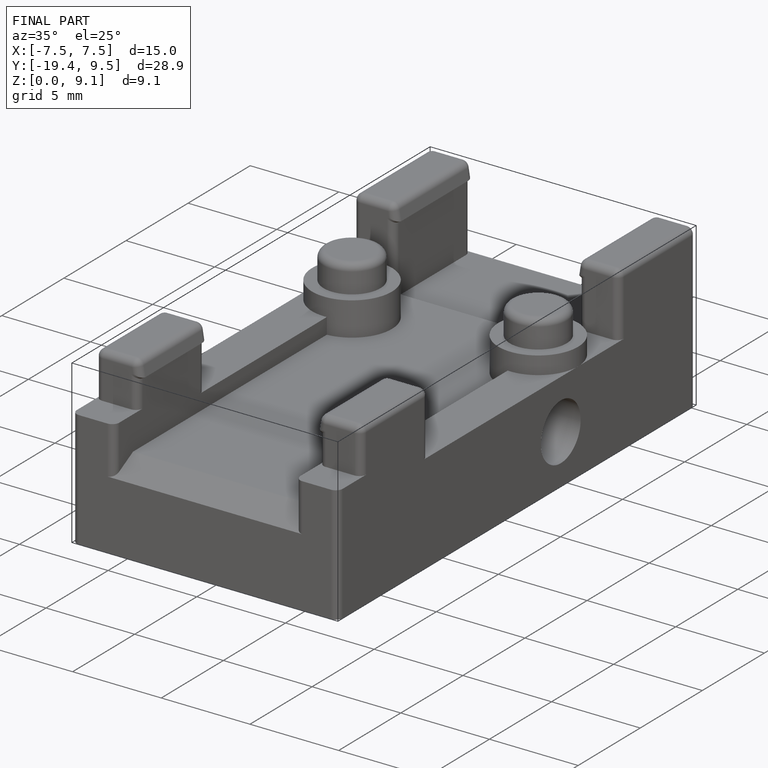
[diagram: finished part — iso view with bounding-box wireframe]
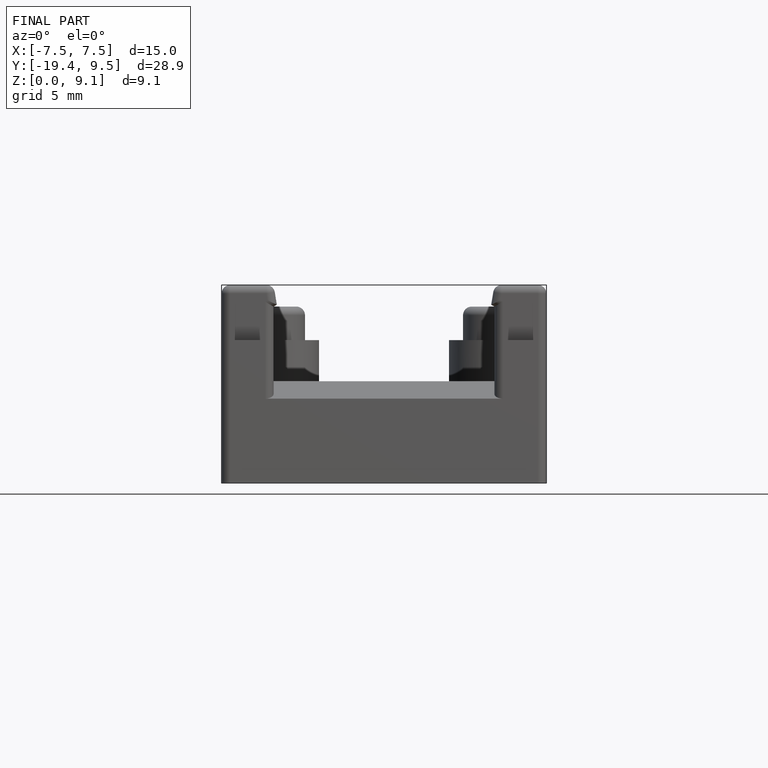
[diagram: finished part — front view with bounding-box wireframe]
